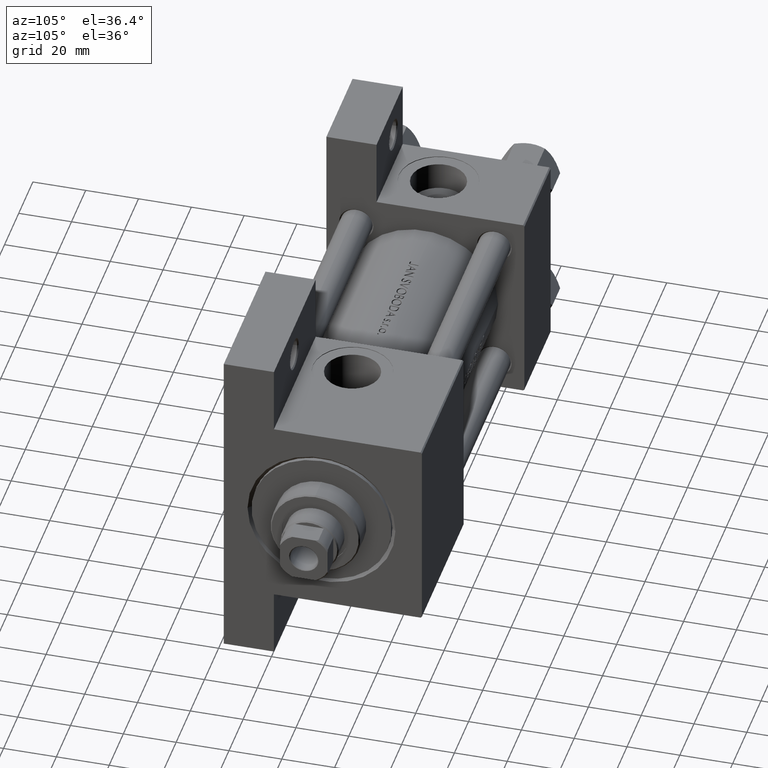
[diagram: clean part render]
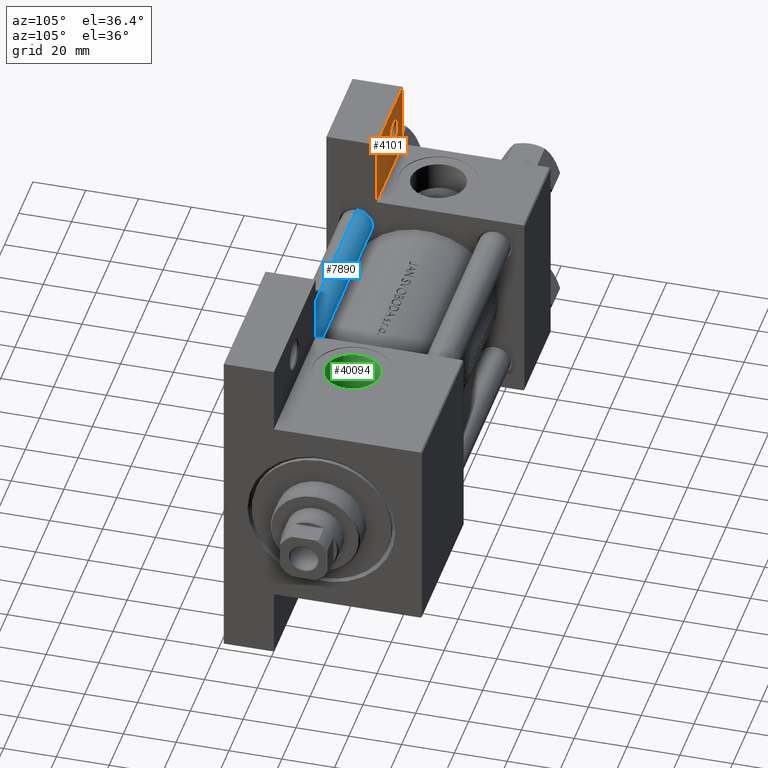
[diagram: same view with three faces highlighted in distinct colors, each labeled with its STEP entity id]
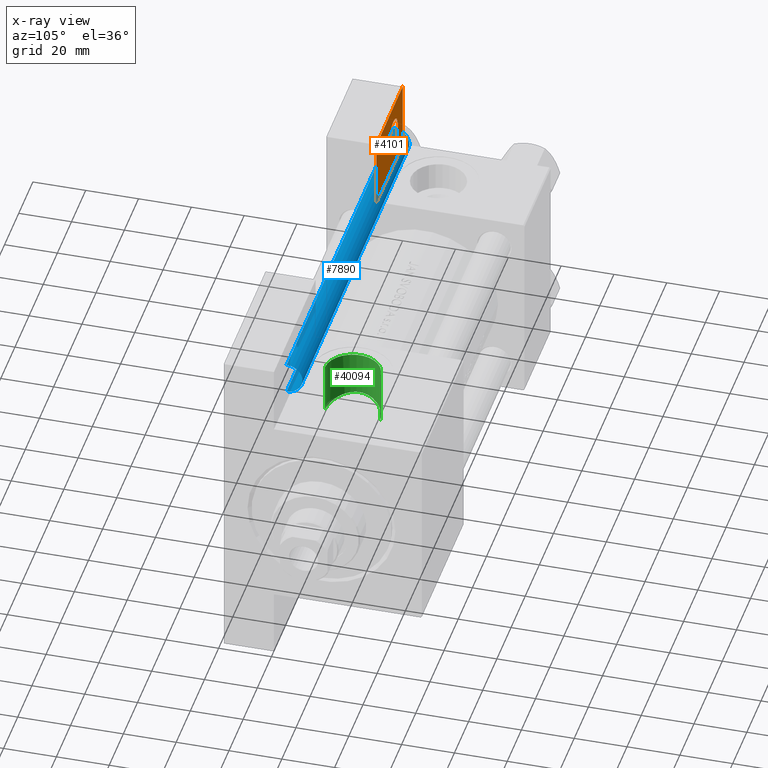
[diagram: x-ray of the same camera — body ghosted, the three highlighted faces saturated]
A machine part, auxiliary view with three faces highlighted in distinct colors.
The next image is the same camera in x-ray (body ghosted, the three faces saturated) — at least one of them is partly hidden behind the body in this view.
Their STEP definitions:

[orange] entity #4101 — the highlighted planar face has unit normal (0, -1, 0).
#673 = EDGE_LOOP ( 'NONE', ( #34753, #43727 ) ) ;
#1435 = FACE_BOUND ( 'NONE', #673, .T. ) ;
#2014 = EDGE_CURVE ( 'NONE', #33084, #4068, #29889, .T. ) ;
#2255 = DIRECTION ( 'NONE',  ( -0.000000000000000000, 1.000000000000000000, 0.000000000000000000 ) ) ;
#3656 = VECTOR ( 'NONE', #24814, 1000.000000000000000 ) ;
#4068 = VERTEX_POINT ( 'NONE', #42276 ) ;
#4101 = ADVANCED_FACE ( 'NONE', ( #1435, #20112 ), #23839, .F. ) ;
#4471 = CIRCLE ( 'NONE', #28351, 5.999500000000050015 ) ;
#6002 = LINE ( 'NONE', #36373, #38342 ) ;
#6077 = CARTESIAN_POINT ( 'NONE',  ( 3.977209754999744250E-16, -63.49999999999998579, -18.50000000000000355 ) ) ;
#6082 = VERTEX_POINT ( 'NONE', #22203 ) ;
#6525 = CARTESIAN_POINT ( 'NONE',  ( 37.00000000000000000, -63.50000000000000000, -18.50000000000000355 ) ) ;
#7303 = CARTESIAN_POINT ( 'NONE',  ( 3.977209754999747208E-16, -63.50000000000000000, -18.50000000000000355 ) ) ;
#10129 = VERTEX_POINT ( 'NONE', #41363 ) ;
#10322 = CARTESIAN_POINT ( 'NONE',  ( 3.977209754999747208E-16, -63.50000000000000000, -18.50000000000000355 ) ) ;
#12902 = CARTESIAN_POINT ( 'NONE',  ( 0.000000000000000000, 0.000000000000000000, -18.50000000000000000 ) ) ;
#13318 = EDGE_CURVE ( 'NONE', #28175, #42954, #26215, .T. ) ;
#13549 = LINE ( 'NONE', #6077, #21973 ) ;
#13668 = EDGE_CURVE ( 'NONE', #6082, #10129, #28543, .T. ) ;
#15275 = ORIENTED_EDGE ( 'NONE', *, *, #28946, .T. ) ;
#15559 = ORIENTED_EDGE ( 'NONE', *, *, #13668, .T. ) ;
#16129 = DIRECTION ( 'NONE',  ( -1.000000000000000000, 0.000000000000000000, -0.000000000000000000 ) ) ;
#17255 = AXIS2_PLACEMENT_3D ( 'NONE', #23443, #33925, #38638 ) ;
#17519 = DIRECTION ( 'NONE',  ( 4.278042683914906889E-17, -1.000000000000000000, 0.000000000000000000 ) ) ;
#17799 = CARTESIAN_POINT ( 'NONE',  ( 18.99950000000004735, -51.00000000000000711, -18.50000000000000000 ) ) ;
#17840 = DIRECTION ( 'NONE',  ( 0.000000000000000000, 0.000000000000000000, -1.000000000000000000 ) ) ;
#20112 = FACE_OUTER_BOUND ( 'NONE', #29237, .T. ) ;
#20466 = AXIS2_PLACEMENT_3D ( 'NONE', #12902, #46508, #16129 ) ;
#21973 = VECTOR ( 'NONE', #17519, 1000.000000000000000 ) ;
#22203 = CARTESIAN_POINT ( 'NONE',  ( 37.00000000000000000, -37.50000000000000000, -18.50000000000000355 ) ) ;
#22475 = DIRECTION ( 'NONE',  ( 1.000000000000000000, 0.000000000000000000, 0.000000000000000000 ) ) ;
#23443 = CARTESIAN_POINT ( 'NONE',  ( 12.99999999999999822, -51.00000000000000711, -18.50000000000000000 ) ) ;
#23839 = PLANE ( 'NONE',  #20466 ) ;
#24814 = DIRECTION ( 'NONE',  ( -1.000000000000000000, 0.000000000000000000, 0.000000000000000000 ) ) ;
#26215 = LINE ( 'NONE', #7303, #40239 ) ;
#28175 = VERTEX_POINT ( 'NONE', #10322 ) ;
#28351 = AXIS2_PLACEMENT_3D ( 'NONE', #33749, #17840, #33009 ) ;
#28543 = LINE ( 'NONE', #43988, #3656 ) ;
#28946 = EDGE_CURVE ( 'NONE', #42954, #6082, #6002, .T. ) ;
#29237 = EDGE_LOOP ( 'NONE', ( #15275, #15559, #46931, #31008 ) ) ;
#29889 = CIRCLE ( 'NONE', #17255, 5.999500000000050015 ) ;
#31008 = ORIENTED_EDGE ( 'NONE', *, *, #13318, .T. ) ;
#33009 = DIRECTION ( 'NONE',  ( -1.000000000000000000, 0.000000000000000000, 0.000000000000000000 ) ) ;
#33084 = VERTEX_POINT ( 'NONE', #17799 ) ;
#33749 = CARTESIAN_POINT ( 'NONE',  ( 12.99999999999999822, -51.00000000000000711, -18.50000000000000000 ) ) ;
#33925 = DIRECTION ( 'NONE',  ( 0.000000000000000000, 0.000000000000000000, -1.000000000000000000 ) ) ;
#34753 = ORIENTED_EDGE ( 'NONE', *, *, #2014, .T. ) ;
#36373 = CARTESIAN_POINT ( 'NONE',  ( 37.00000000000000000, -63.49999999999998579, -18.50000000000000355 ) ) ;
#38149 = EDGE_CURVE ( 'NONE', #10129, #28175, #13549, .T. ) ;
#38342 = VECTOR ( 'NONE', #2255, 1000.000000000000000 ) ;
#38638 = DIRECTION ( 'NONE',  ( -1.000000000000000000, 0.000000000000000000, 0.000000000000000000 ) ) ;
#40239 = VECTOR ( 'NONE', #22475, 1000.000000000000000 ) ;
#41363 = CARTESIAN_POINT ( 'NONE',  ( -7.145701223179004046E-16, -37.50000000000000711, -18.50000000000000355 ) ) ;
#41936 = EDGE_CURVE ( 'NONE', #4068, #33084, #4471, .T. ) ;
#42276 = CARTESIAN_POINT ( 'NONE',  ( 7.000499999999947320, -51.00000000000000711, -18.50000000000000000 ) ) ;
#42954 = VERTEX_POINT ( 'NONE', #6525 ) ;
#43727 = ORIENTED_EDGE ( 'NONE', *, *, #41936, .T. ) ;
#43988 = CARTESIAN_POINT ( 'NONE',  ( -7.145701223179000102E-16, -37.50000000000001421, -18.49999999999999645 ) ) ;
#46508 = DIRECTION ( 'NONE',  ( 0.000000000000000000, 0.000000000000000000, -1.000000000000000000 ) ) ;
#46931 = ORIENTED_EDGE ( 'NONE', *, *, #38149, .T. ) ;

[blue] entity #7890 — the highlighted cylindrical surface (edge-blend (fillet) strip) has radius 6 mm, axis along (1, 0, 0).
#1587 = CARTESIAN_POINT ( 'NONE',  ( -6.000000000000000888, 0.000000000000000000, 152.0000000000000000 ) ) ;
#1719 = DIRECTION ( 'NONE',  ( -0.000000000000000000, -0.000000000000000000, 1.000000000000000000 ) ) ;
#4041 = EDGE_CURVE ( 'NONE', #48076, #46819, #14118, .T. ) ;
#4186 = DIRECTION ( 'NONE',  ( 0.000000000000000000, 0.000000000000000000, -1.000000000000000000 ) ) ;
#4328 = CYLINDRICAL_SURFACE ( 'NONE', #22418, 6.000000000000000888 ) ;
#4661 = DIRECTION ( 'NONE',  ( -0.000000000000000000, -0.000000000000000000, -1.000000000000000000 ) ) ;
#4822 = DIRECTION ( 'NONE',  ( -1.000000000000000000, 0.000000000000000000, 0.000000000000000000 ) ) ;
#4826 = LINE ( 'NONE', #1587, #20013 ) ;
#5454 = EDGE_LOOP ( 'NONE', ( #13945, #19835, #26607, #18088 ) ) ;
#7890 = ADVANCED_FACE ( 'NONE', ( #20264 ), #4328, .T. ) ;
#9211 = CARTESIAN_POINT ( 'NONE',  ( 0.000000000000000000, 0.000000000000000000, 0.5000000000000281997 ) ) ;
#13945 = ORIENTED_EDGE ( 'NONE', *, *, #34528, .F. ) ;
#14118 = CIRCLE ( 'NONE', #45911, 6.000000000000000888 ) ;
#15108 = CARTESIAN_POINT ( 'NONE',  ( -6.000000000000000888, 0.000000000000000000, 0.5000000000000281997 ) ) ;
#16912 = DIRECTION ( 'NONE',  ( 1.000000000000000000, 0.000000000000000000, 0.000000000000000000 ) ) ;
#18088 = ORIENTED_EDGE ( 'NONE', *, *, #34195, .T. ) ;
#19527 = CARTESIAN_POINT ( 'NONE',  ( 0.000000000000000000, 0.000000000000000000, 152.0000000000000000 ) ) ;
#19835 = ORIENTED_EDGE ( 'NONE', *, *, #4041, .T. ) ;
#20013 = VECTOR ( 'NONE', #47157, 1000.000000000000000 ) ;
#20264 = FACE_OUTER_BOUND ( 'NONE', #5454, .T. ) ;
#22418 = AXIS2_PLACEMENT_3D ( 'NONE', #19527, #42415, #4822 ) ;
#23407 = VECTOR ( 'NONE', #4661, 1000.000000000000000 ) ;
#26469 = EDGE_CURVE ( 'NONE', #46819, #48114, #4826, .T. ) ;
#26607 = ORIENTED_EDGE ( 'NONE', *, *, #26469, .T. ) ;
#27293 = CARTESIAN_POINT ( 'NONE',  ( 6.000000000000000888, 7.347880794884120722E-16, 152.0000000000000000 ) ) ;
#28208 = CIRCLE ( 'NONE', #36968, 6.000000000000000888 ) ;
#28676 = CARTESIAN_POINT ( 'NONE',  ( -6.000000000000000888, 0.000000000000000000, 151.5000000000000000 ) ) ;
#34071 = CARTESIAN_POINT ( 'NONE',  ( 0.000000000000000000, 0.000000000000000000, 151.5000000000000000 ) ) ;
#34195 = EDGE_CURVE ( 'NONE', #48114, #43537, #28208, .T. ) ;
#34528 = EDGE_CURVE ( 'NONE', #48076, #43537, #41760, .T. ) ;
#36968 = AXIS2_PLACEMENT_3D ( 'NONE', #9211, #1719, #16912 ) ;
#38000 = CARTESIAN_POINT ( 'NONE',  ( 6.000000000000000888, 7.347880794884120722E-16, 151.5000000000000000 ) ) ;
#41760 = LINE ( 'NONE', #27293, #23407 ) ;
#42415 = DIRECTION ( 'NONE',  ( -0.000000000000000000, -0.000000000000000000, -1.000000000000000000 ) ) ;
#43537 = VERTEX_POINT ( 'NONE', #49020 ) ;
#45911 = AXIS2_PLACEMENT_3D ( 'NONE', #34071, #4186, #49267 ) ;
#46819 = VERTEX_POINT ( 'NONE', #28676 ) ;
#47157 = DIRECTION ( 'NONE',  ( -0.000000000000000000, -0.000000000000000000, -1.000000000000000000 ) ) ;
#48076 = VERTEX_POINT ( 'NONE', #38000 ) ;
#48114 = VERTEX_POINT ( 'NONE', #15108 ) ;
#49020 = CARTESIAN_POINT ( 'NONE',  ( 6.000000000000000888, 7.347880794884120722E-16, 0.5000000000000281997 ) ) ;
#49267 = DIRECTION ( 'NONE',  ( 1.000000000000000000, 0.000000000000000000, 0.000000000000000000 ) ) ;

[green] entity #40094 — the highlighted cylindrical surface (edge-blend (fillet) strip) has radius 10.48 mm, axis along (-0, -0, 1).
#176 = CARTESIAN_POINT ( 'NONE',  ( 129.5217053303387615, -20.48332967077006828, 0.3975496392329738171 ) ) ;
#801 = LINE ( 'NONE', #16007, #42426 ) ;
#912 = CARTESIAN_POINT ( 'NONE',  ( 137.5877247240034364, -17.48338598744718198, 10.20456839096644686 ) ) ;
#1013 = CARTESIAN_POINT ( 'NONE',  ( 140.0000000000000000, 37.50100000000000477, -10.47999999999997556 ) ) ;
#1325 = EDGE_CURVE ( 'NONE', #32237, #43143, #20709, .T. ) ;
#2100 = VECTOR ( 'NONE', #8521, 1000.000000000000000 ) ;
#3699 = CARTESIAN_POINT ( 'NONE',  ( 139.3044545345210565, -17.31154528053462016, 10.47999999999999154 ) ) ;
#3907 = ORIENTED_EDGE ( 'NONE', *, *, #1325, .F. ) ;
#3921 = CYLINDRICAL_SURFACE ( 'NONE', #21117, 10.47999999999998622 ) ;
#3936 = CARTESIAN_POINT ( 'NONE',  ( 129.7848721841020563, -20.41767756798353517, -2.366995833931131887 ) ) ;
#4175 = CARTESIAN_POINT ( 'NONE',  ( 135.3335954883717989, -17.94904599600547712, 9.408192873974197568 ) ) ;
#4179 = DIRECTION ( 'NONE',  ( 0.000000000000000000, 0.000000000000000000, -1.000000000000000000 ) ) ;
#4421 = CARTESIAN_POINT ( 'NONE',  ( 130.1894306476517613, -20.25102656977830762, -3.701459934073187519 ) ) ;
#4671 = CARTESIAN_POINT ( 'NONE',  ( 132.1545344758437750, -19.09783805311036886, 6.956499678098870376 ) ) ;
#7083 = VERTEX_POINT ( 'NONE', #39358 ) ;
#7428 = CARTESIAN_POINT ( 'NONE',  ( 134.7374011664607565, -18.12441261360090294, 9.088217275655875227 ) ) ;
#7930 = CARTESIAN_POINT ( 'NONE',  ( 129.5169168091323399, -20.51137673509301607, -0.6516029565374288346 ) ) ;
#8169 = CARTESIAN_POINT ( 'NONE',  ( 136.2712649677958154, -17.72514759185509092, 9.800086280978527853 ) ) ;
#8521 = DIRECTION ( 'NONE',  ( -0.000000000000000000, -1.000000000000000000, -8.673617379884036705E-17 ) ) ;
#8709 = ORIENTED_EDGE ( 'NONE', *, *, #46420, .T. ) ;
#11180 = CARTESIAN_POINT ( 'NONE',  ( 131.6811096513062864, -19.63967553149033662, -6.382942706579978420 ) ) ;
#11181 = EDGE_LOOP ( 'NONE', ( #8709, #25846, #45838, #3907 ) ) ;
#11668 = CARTESIAN_POINT ( 'NONE',  ( 129.8700277560726875, -20.38347105376920254, -2.708475799773472747 ) ) ;
#11906 = CARTESIAN_POINT ( 'NONE',  ( 133.0649927009444866, -19.13289277132431465, -7.864532804023773416 ) ) ;
#12147 = CARTESIAN_POINT ( 'NONE',  ( 140.0000000000000000, -17.90669148670408362, -10.47999999999998089 ) ) ;
#15157 = CARTESIAN_POINT ( 'NONE',  ( 132.3809730746911839, -18.99918516550075864, 7.203644680487137464 ) ) ;
#15394 = CARTESIAN_POINT ( 'NONE',  ( 129.6681735545246852, -20.37457923911944846, 1.789747077269118414 ) ) ;
#15644 = CARTESIAN_POINT ( 'NONE',  ( 131.4759556616729128, -19.72067553347482871, -6.106406543856691904 ) ) ;
#15881 = CARTESIAN_POINT ( 'NONE',  ( 138.6018487986953005, -17.94656342485971834, -10.40934886090304268 ) ) ;
#16007 = CARTESIAN_POINT ( 'NONE',  ( 140.0000000000000000, 37.50100000000000477, 10.47999999999999687 ) ) ;
#17668 = VERTEX_POINT ( 'NONE', #24221 ) ;
#18889 = CARTESIAN_POINT ( 'NONE',  ( 136.2574528650404488, -18.27226487592814408, -9.794965196591777001 ) ) ;
#19111 = CARTESIAN_POINT ( 'NONE',  ( 140.0000000000000000, 37.50100000000000477, 9.974746723040443104E-15 ) ) ;
#19367 = CARTESIAN_POINT ( 'NONE',  ( 140.0000000000000000, -17.31154528053461306, 10.47999999999999154 ) ) ;
#19620 = CARTESIAN_POINT ( 'NONE',  ( 132.1121230715595800, -19.47452367214849644, -6.908494176797778330 ) ) ;
#19918 = CARTESIAN_POINT ( 'NONE',  ( 140.0000000000000000, -37.29999999999999716, -10.47999999999998266 ) ) ;
#20709 = LINE ( 'NONE', #1013, #2100 ) ;
#21117 = AXIS2_PLACEMENT_3D ( 'NONE', #19111, #48997, #26813 ) ;
#22603 = CARTESIAN_POINT ( 'NONE',  ( 136.5836453213384232, -18.21117968299171963, -9.913622529243996340 ) ) ;
#22852 = CARTESIAN_POINT ( 'NONE',  ( 130.9055833317326005, -19.95017549749733377, -5.252667561004574992 ) ) ;
#23099 = CARTESIAN_POINT ( 'NONE',  ( 133.8618195419076642, -18.87524337706392785, -8.501152861621342538 ) ) ;
#23335 = CARTESIAN_POINT ( 'NONE',  ( 136.5915143732480885, -17.65692230102833449, 9.916186572683967526 ) ) ;
#23586 = CARTESIAN_POINT ( 'NONE',  ( 129.8085289422961637, -20.28709306372374144, 2.466525892830136346 ) ) ;
#24221 = CARTESIAN_POINT ( 'NONE',  ( 140.0000000000000000, -37.29999999999999716, 10.47999999999998977 ) ) ;
#25846 = ORIENTED_EDGE ( 'NONE', *, *, #32414, .T. ) ;
#26339 = CARTESIAN_POINT ( 'NONE',  ( 135.3089432184007705, -18.47132649600307275, -9.396531025392599545 ) ) ;
#26813 = DIRECTION ( 'NONE',  ( 0.000000000000000000, 0.000000000000000000, -1.000000000000000000 ) ) ;
#26831 = CARTESIAN_POINT ( 'NONE',  ( 133.6096037740494467, -18.50380750299995469, 8.333875197508971766 ) ) ;
#27070 = CARTESIAN_POINT ( 'NONE',  ( 132.3390100190131875, -19.38994764023254547, -7.159155389767049904 ) ) ;
#30308 = CARTESIAN_POINT ( 'NONE',  ( 129.5830884358183823, -20.49411676436529817, -1.342674851160320149 ) ) ;
#30550 = CARTESIAN_POINT ( 'NONE',  ( 131.7233602415656435, -19.29242988523072455, 6.437503504559506595 ) ) ;
#30804 = CARTESIAN_POINT ( 'NONE',  ( 131.5187940887308287, -19.38832963419614686, 6.165523076675712311 ) ) ;
#31038 = CARTESIAN_POINT ( 'NONE',  ( 137.2485603725488943, -17.53617776474739642, 10.11820687614873826 ) ) ;
#31279 = CARTESIAN_POINT ( 'NONE',  ( 132.8154452386611410, -19.21913497042929464, -7.637175280490517970 ) ) ;
#31576 = CIRCLE ( 'NONE', #39560, 10.47999999999998622 ) ;
#32237 = VERTEX_POINT ( 'NONE', #34419 ) ;
#32414 = EDGE_CURVE ( 'NONE', #7083, #17668, #801, .T. ) ;
#34059 = CARTESIAN_POINT ( 'NONE',  ( 133.5874752611917415, -18.96115153041447243, -8.296067076494246351 ) ) ;
#34293 = CARTESIAN_POINT ( 'NONE',  ( 130.0726434498571109, -20.29999609518734971, -3.376354653621504109 ) ) ;
#34419 = CARTESIAN_POINT ( 'NONE',  ( 140.0000000000000000, -17.90669148670408362, -10.47999999999998089 ) ) ;
#34783 = CARTESIAN_POINT ( 'NONE',  ( 130.1012934303698785, -20.11685413836228520, 3.459060791729259066 ) ) ;
#34786 = DIRECTION ( 'NONE',  ( 0.000000000000000000, -1.000000000000000000, -8.673617379884036705E-17 ) ) ;
#35024 = CARTESIAN_POINT ( 'NONE',  ( 130.6245642930965687, -19.83139452378803469, 4.733173975255226651 ) ) ;
#36009 = B_SPLINE_CURVE_WITH_KNOTS ( 'NONE', 3,
 ( #12147, #38784, #15881, #37805, #38288, #22603, #18889, #26339, #46012, #23099, #34059, #11906, #31279, #27070, #19620, #11180, #15644, #22852, #38525, #4421, #34293, #11668, #3936, #30308, #7930, #176, #46246, #45768, #15394, #23586, #42265, #34783, #38049, #35024, #42021, #30804, #30550, #4671, #15157, #41523, #26831, #7428, #4175, #8169, #23335, #31038, #912, #45515, #3699, #19367 ),
 .UNSPECIFIED., .F., .F.,
 ( 4, 2, 2, 2, 2, 2, 2, 2, 2, 2, 2, 2, 2, 2, 2, 2, 2, 2, 2, 2, 2, 2, 2, 2, 4 ),
 ( 0.000000000000000000, 0.002085732680859664952, 0.003128599021289498079, 0.004171465361719330772, 0.006257198042578998760, 0.007300064383008865281, 0.008342930723438730933, 0.009385797063868595719, 0.01042866340429846224, 0.01251439608515819701, 0.01355726242558806353, 0.01460012876601793179, 0.01668586144687765616, 0.01772872778730751053, 0.01877159412773736838, 0.01981446046816722970, 0.02085732680859708754, 0.02294305948945683793, 0.02398592582988671312, 0.02502879217031658485, 0.02711452485117638728, 0.02920025753203618624, 0.03024312387246608919, 0.03128599021289599214, 0.03337172289375579803 ),
 .UNSPECIFIED. ) ;
#37156 = DIRECTION ( 'NONE',  ( -0.000000000000000000, -1.000000000000000000, -8.673617379884036705E-17 ) ) ;
#37805 = CARTESIAN_POINT ( 'NONE',  ( 137.5843153394802130, -18.05810427117003059, -10.20365670940337033 ) ) ;
#38049 = CARTESIAN_POINT ( 'NONE',  ( 130.2215461673905281, -20.04967575897764220, 3.785508326117123623 ) ) ;
#38288 = CARTESIAN_POINT ( 'NONE',  ( 137.2485181366844813, -18.10389330548456144, -10.11833674566095986 ) ) ;
#38525 = CARTESIAN_POINT ( 'NONE',  ( 130.5840202247433979, -20.08544715864210417, -4.651927720320701454 ) ) ;
#38784 = CARTESIAN_POINT ( 'NONE',  ( 139.2936450912457644, -17.90669148670408362, -10.47999999999997733 ) ) ;
#39358 = CARTESIAN_POINT ( 'NONE',  ( 140.0000000000000000, -17.31154528053461306, 10.47999999999999154 ) ) ;
#39560 = AXIS2_PLACEMENT_3D ( 'NONE', #46499, #34786, #4179 ) ;
#40094 = ADVANCED_FACE ( 'NONE', ( #45261 ), #3921, .F. ) ;
#41523 = CARTESIAN_POINT ( 'NONE',  ( 133.0925800491786788, -18.70257500022392350, 7.909780117561131085 ) ) ;
#42021 = CARTESIAN_POINT ( 'NONE',  ( 130.9495768395414927, -19.66322346998767046, 5.326983638994161829 ) ) ;
#42265 = CARTESIAN_POINT ( 'NONE',  ( 129.8951751743529712, -20.23535558307757398, 2.800358647656735034 ) ) ;
#42426 = VECTOR ( 'NONE', #37156, 1000.000000000000000 ) ;
#43143 = VERTEX_POINT ( 'NONE', #19918 ) ;
#43625 = EDGE_CURVE ( 'NONE', #17668, #43143, #31576, .T. ) ;
#45261 = FACE_OUTER_BOUND ( 'NONE', #11181, .T. ) ;
#45515 = CARTESIAN_POINT ( 'NONE',  ( 138.6144639565822843, -17.35559248084098982, 10.41144764597006223 ) ) ;
#45768 = CARTESIAN_POINT ( 'NONE',  ( 129.6144618885458044, -20.41033060918976361, 1.446801902193837197 ) ) ;
#45838 = ORIENTED_EDGE ( 'NONE', *, *, #43625, .T. ) ;
#46012 = CARTESIAN_POINT ( 'NONE',  ( 134.7109170005340673, -18.62590504215679488, -9.073138281531834437 ) ) ;
#46246 = CARTESIAN_POINT ( 'NONE',  ( 129.5411270509842439, -20.46474067275494235, 0.7514081746990727284 ) ) ;
#46420 = EDGE_CURVE ( 'NONE', #32237, #7083, #36009, .T. ) ;
#46499 = CARTESIAN_POINT ( 'NONE',  ( 140.0000000000000000, -37.29999999999999716, 3.486794186713383443E-15 ) ) ;
#48997 = DIRECTION ( 'NONE',  ( -0.000000000000000000, -1.000000000000000000, -8.673617379884036705E-17 ) ) ;